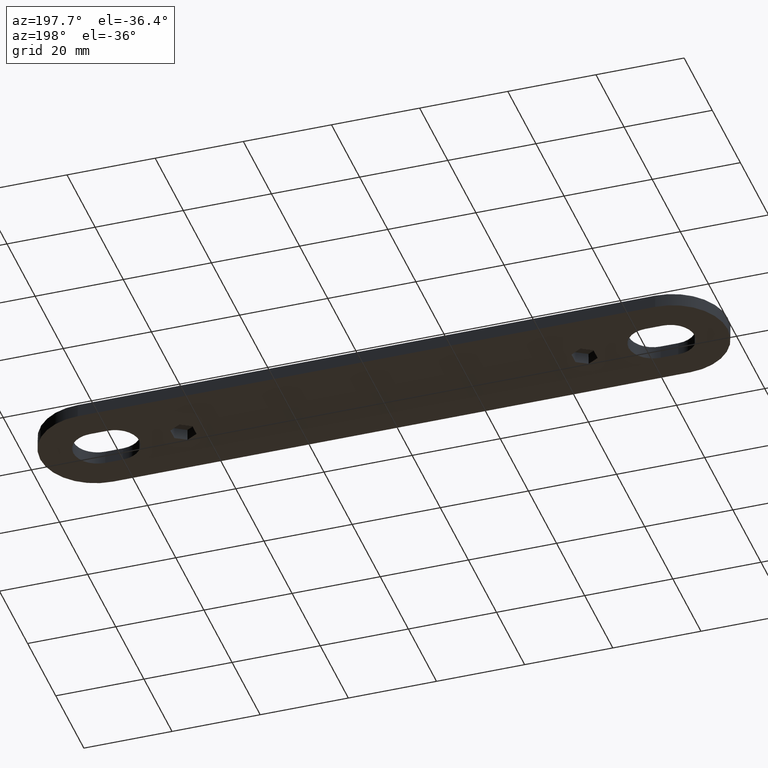
[diagram: clean part render]
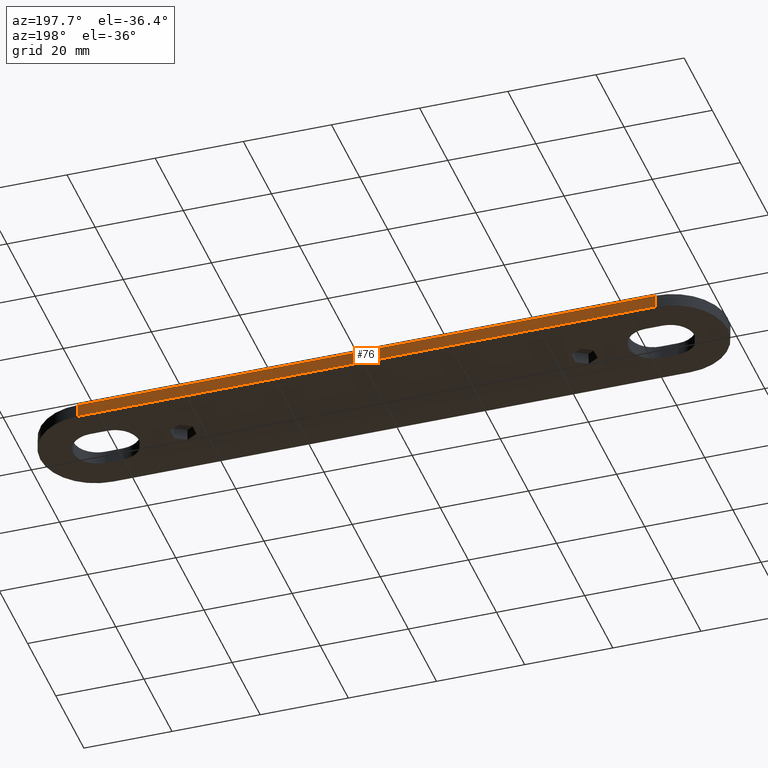
[diagram: same view with one face highlighted and labeled with its STEP entity id]
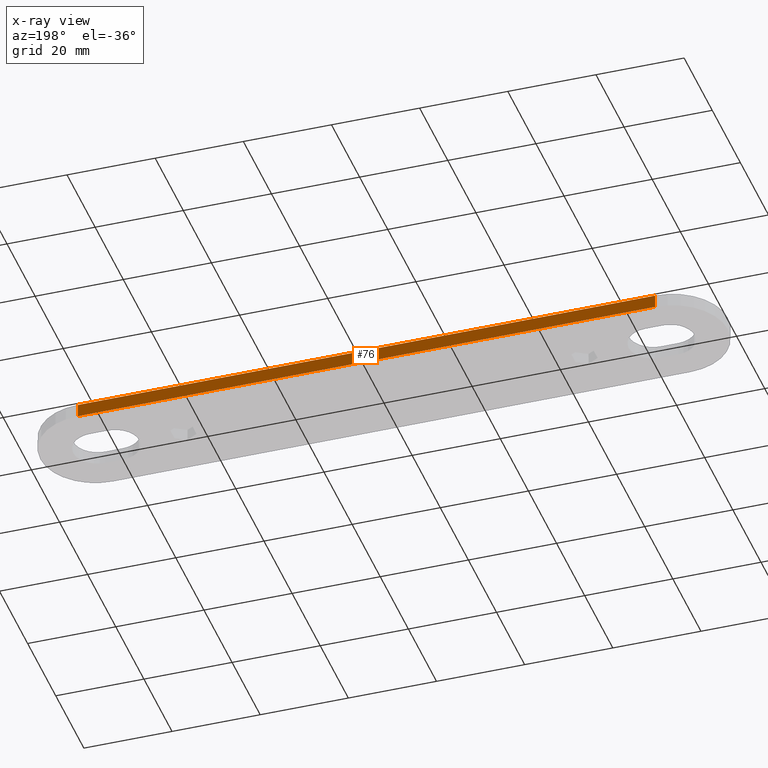
[diagram: x-ray of the same camera — body ghosted, the highlighted face saturated]
A machine part, auxiliary view. The second image highlights one B-rep face of the part: STEP entity #76.
The next image is the same camera in x-ray: the body ghosted, the highlighted face saturated — about 0% of this face is hidden behind the body in this view.
In plain terms, the highlighted planar face has unit normal (0, -1, 0).
Its self-contained STEP definition (entity closure, byte-faithful):
#76 = ADVANCED_FACE( '', ( #158 ), #159, .F. );
#158 = FACE_OUTER_BOUND( '', #315, .T. );
#159 = PLANE( '', #316 );
#315 = EDGE_LOOP( '', ( #512, #513, #514, #515 ) );
#316 = AXIS2_PLACEMENT_3D( '', #516, #517, #518 );
#512 = ORIENTED_EDGE( '', *, *, #1048, .T. );
#513 = ORIENTED_EDGE( '', *, *, #1078, .F. );
#514 = ORIENTED_EDGE( '', *, *, #1079, .F. );
#515 = ORIENTED_EDGE( '', *, *, #1080, .T. );
#516 = CARTESIAN_POINT( '', ( -65.4999999999999, 12.5000000000000, -4.23987423945824E-014 ) );
#517 = DIRECTION( '', ( 7.88860905221011E-031, -1.00000000000000, 6.12303176911189E-017 ) );
#518 = DIRECTION( '', ( -1.00000000000000, -7.88860905221011E-031, 4.83022038407861E-047 ) );
#1048 = EDGE_CURVE( '', #1244, #1245, #1246, .T. );
#1078 = EDGE_CURVE( '', #1304, #1245, #1305, .T. );
#1079 = EDGE_CURVE( '', #1306, #1304, #1307, .T. );
#1080 = EDGE_CURVE( '', #1306, #1244, #1308, .T. );
#1244 = VERTEX_POINT( '', #1555 );
#1245 = VERTEX_POINT( '', #1556 );
#1246 = LINE( '', #1557, #1558 );
#1304 = VERTEX_POINT( '', #1634 );
#1305 = LINE( '', #1635, #1636 );
#1306 = VERTEX_POINT( '', #1637 );
#1307 = LINE( '', #1638, #1639 );
#1308 = LINE( '', #1640, #1641 );
#1555 = CARTESIAN_POINT( '', ( -65.4999999999999, 12.5000000000000, 2.99999999999996 ) );
#1556 = CARTESIAN_POINT( '', ( 65.5000000000001, 12.5000000000000, 2.99999999999996 ) );
#1557 = CARTESIAN_POINT( '', ( -65.4999999999999, 12.5000000000000, 2.99999999999996 ) );
#1558 = VECTOR( '', #1978, 1000.00000000000 );
#1634 = CARTESIAN_POINT( '', ( 65.5000000000001, 12.5000000000000, -4.23987423945824E-014 ) );
#1635 = CARTESIAN_POINT( '', ( 65.5000000000001, 12.5000000000000, -4.23987423945824E-014 ) );
#1636 = VECTOR( '', #2030, 1000.00000000000 );
#1637 = CARTESIAN_POINT( '', ( -65.4999999999999, 12.5000000000000, -4.23987423945824E-014 ) );
#1638 = CARTESIAN_POINT( '', ( -65.4999999999999, 12.5000000000000, -4.23987423945824E-014 ) );
#1639 = VECTOR( '', #2031, 1000.00000000000 );
#1640 = CARTESIAN_POINT( '', ( -65.4999999999999, 12.5000000000000, -4.23987423945824E-014 ) );
#1641 = VECTOR( '', #2032, 1000.00000000000 );
#1978 = DIRECTION( '', ( 1.00000000000000, -3.15544362088405E-030, 1.93208815363145E-046 ) );
#2030 = DIRECTION( '', ( 0.000000000000000, 6.12303176911189E-017, 1.00000000000000 ) );
#2031 = DIRECTION( '', ( 1.00000000000000, -3.15544362088405E-030, 1.93208815363145E-046 ) );
#2032 = DIRECTION( '', ( 0.000000000000000, 6.12303176911189E-017, 1.00000000000000 ) );